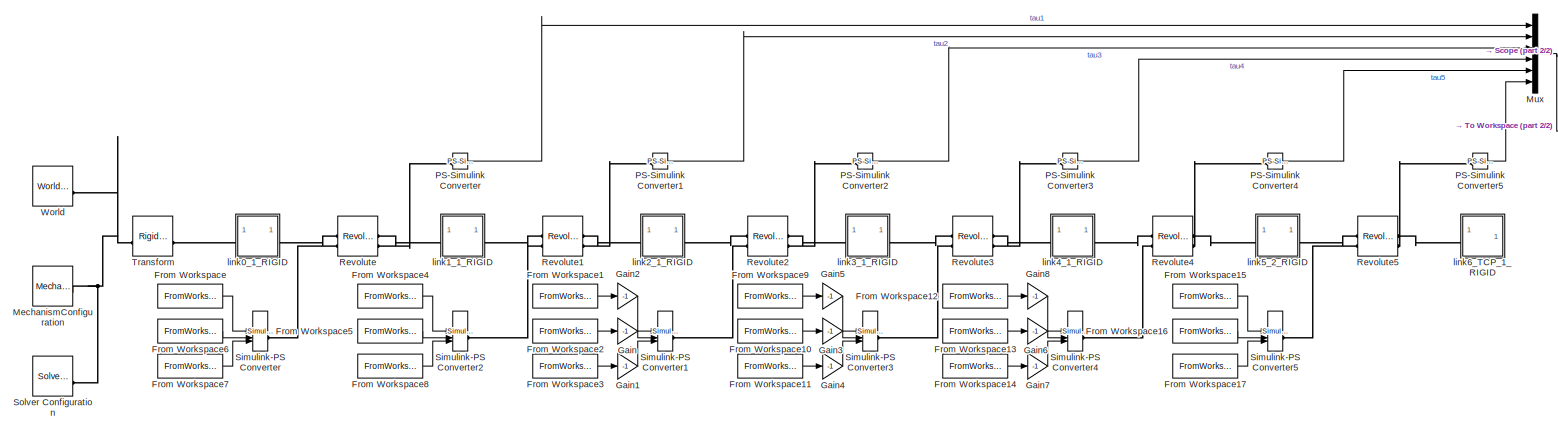
[diagram: root canvas - part 1/2, most of the canvas]
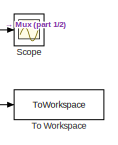
[diagram: root canvas - part 2/2, top right region]
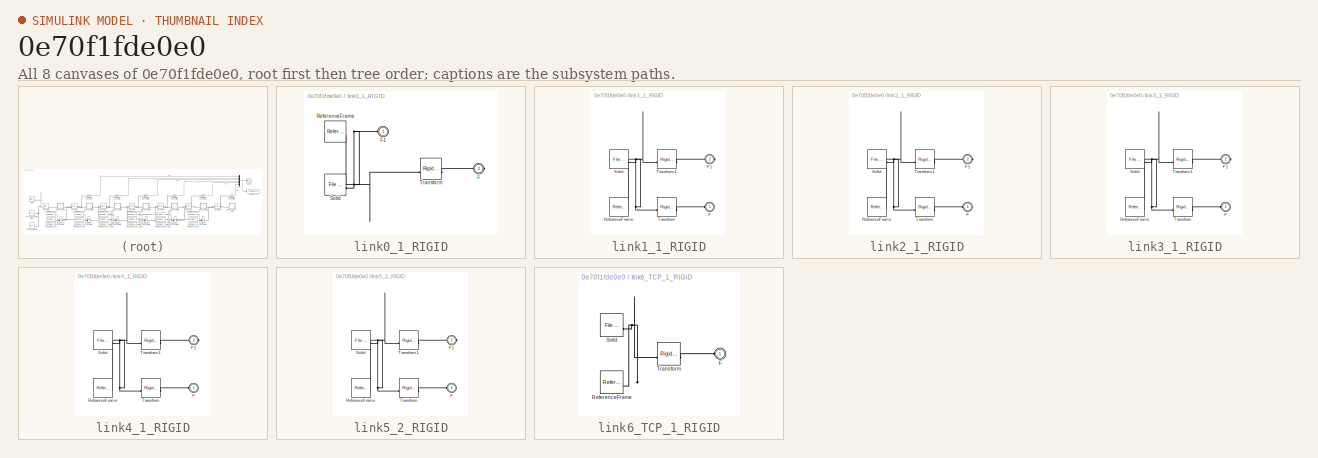
[diagram: thumbnail index - all 8 canvases of the model, root first then tree order]
MODEL slx_0e70f1fde0e0
KIND model
CONFIG AbsTol = auto
CONFIG EnableMultiTasking = off
CONFIG FixedStep = 1/100
CONFIG MaxStep = auto
CONFIG MinStep = auto
CONFIG RelTol = 1e-3
CONFIG SampleTimeConstraint = Unconstrained
CONFIG SolverName = FixedStepAuto
CONFIG StartTime = 0.0
CONFIG StopTime = 10.0
WORKSPACE source: external: MATLAB File  (data not in archive)
BLOCK [FromWorkspace] From Workspace
  VariableName = q1
BLOCK [FromWorkspace] From Workspace1
  VariableName = q3
BLOCK [FromWorkspace] From Workspace10
  VariableName = dq4
BLOCK [FromWorkspace] From Workspace11
  VariableName = ddq4
BLOCK [FromWorkspace] From Workspace12
  VariableName = q5
BLOCK [FromWorkspace] From Workspace13
  VariableName = dq5
BLOCK [FromWorkspace] From Workspace14
  VariableName = ddq5
BLOCK [FromWorkspace] From Workspace15
  VariableName = q6
BLOCK [FromWorkspace] From Workspace16
  VariableName = dq6
BLOCK [FromWorkspace] From Workspace17
  VariableName = ddq6
BLOCK [FromWorkspace] From Workspace2
  VariableName = dq3
BLOCK [FromWorkspace] From Workspace3
  VariableName = ddq3
BLOCK [FromWorkspace] From Workspace4
  VariableName = q2
BLOCK [FromWorkspace] From Workspace5
  VariableName = dq2
BLOCK [FromWorkspace] From Workspace6
  VariableName = dq1
BLOCK [FromWorkspace] From Workspace7
  VariableName = ddq1
BLOCK [FromWorkspace] From Workspace8
  VariableName = ddq2
BLOCK [FromWorkspace] From Workspace9
  VariableName = q4
BLOCK [Gain] Gain
  Gain = -1
BLOCK [Gain] Gain1
  Gain = -1
BLOCK [Gain] Gain2
  Gain = -1
BLOCK [Gain] Gain3
  Gain = -1
BLOCK [Gain] Gain4
  Gain = -1
BLOCK [Gain] Gain5
  Gain = -1
BLOCK [Gain] Gain6
  Gain = -1
BLOCK [Gain] Gain7
  Gain = -1
BLOCK [Gain] Gain8
  Gain = -1
BLOCK [Reference] MechanismConfiguration  REF=sm_lib/Utilities/Mechanism
Configuration
  SourceBlock = sm_lib/Utilities/Mechanism\nConfiguration
  SourceType = Mechanism\nConfiguration
BLOCK [Mux] Mux
  DisplayOption = bar
  Inputs = 6
BLOCK [Reference] PS-Simulink Converter  REF=nesl_utility/PS-Simulink
Converter
  SourceBlock = nesl_utility/PS-Simulink\nConverter
  SourceType = PS-Simulink\nConverter
BLOCK [Reference] PS-Simulink Converter1  REF=nesl_utility/PS-Simulink
Converter
  SourceBlock = nesl_utility/PS-Simulink\nConverter
  SourceType = PS-Simulink\nConverter
BLOCK [Reference] PS-Simulink Converter2  REF=nesl_utility/PS-Simulink
Converter
  SourceBlock = nesl_utility/PS-Simulink\nConverter
  SourceType = PS-Simulink\nConverter
BLOCK [Reference] PS-Simulink Converter3  REF=nesl_utility/PS-Simulink
Converter
  SourceBlock = nesl_utility/PS-Simulink\nConverter
  SourceType = PS-Simulink\nConverter
BLOCK [Reference] PS-Simulink Converter4  REF=nesl_utility/PS-Simulink
Converter
  SourceBlock = nesl_utility/PS-Simulink\nConverter
  SourceType = PS-Simulink\nConverter
BLOCK [Reference] PS-Simulink Converter5  REF=nesl_utility/PS-Simulink
Converter
  SourceBlock = nesl_utility/PS-Simulink\nConverter
  SourceType = PS-Simulink\nConverter
BLOCK [Reference] Revolute  REF=sm_lib/Joints/Revolute Joint
  SourceBlock = sm_lib/Joints/Revolute Joint
  SourceType = Revolute Joint
BLOCK [Reference] Revolute1  REF=sm_lib/Joints/Revolute Joint
  SourceBlock = sm_lib/Joints/Revolute Joint
  SourceType = Revolute Joint
BLOCK [Reference] Revolute2  REF=sm_lib/Joints/Revolute Joint
  SourceBlock = sm_lib/Joints/Revolute Joint
  SourceType = Revolute Joint
BLOCK [Reference] Revolute3  REF=sm_lib/Joints/Revolute Joint
  SourceBlock = sm_lib/Joints/Revolute Joint
  SourceType = Revolute Joint
BLOCK [Reference] Revolute4  REF=sm_lib/Joints/Revolute Joint
  SourceBlock = sm_lib/Joints/Revolute Joint
  SourceType = Revolute Joint
BLOCK [Reference] Revolute5  REF=sm_lib/Joints/Revolute Joint
  SourceBlock = sm_lib/Joints/Revolute Joint
  SourceType = Revolute Joint
BLOCK [Scope] Scope
  Floating = off
  NumInputPorts = 1
  ScopeSpecificationString = Simulink.scopes.TimeScopeBlockCfg('CurrentConfiguration', extmgr.ConfigurationSet(extmgr.Configuration('Core','General UI',true),extmgr.Configuration('Core','Source UI',true),extmgr.Configuration('Sources','WiredSimulink',true),extmgr.Configuration('Visuals','Time Domain',true),extmgr.Configuration('Tools','Plot Navigation',true),extmgr.Configuration('Tools','Measurements',true)),'Version','2024b'...<+1ch>
BLOCK [Reference] Simulink-PS Converter  REF=nesl_utility/Simulink-PS
Converter
  SourceBlock = nesl_utility/Simulink-PS\nConverter
  SourceType = Simulink-PS\nConverter
BLOCK [Reference] Simulink-PS Converter1  REF=nesl_utility/Simulink-PS
Converter
  SourceBlock = nesl_utility/Simulink-PS\nConverter
  SourceType = Simulink-PS\nConverter
BLOCK [Reference] Simulink-PS Converter2  REF=nesl_utility/Simulink-PS
Converter
  SourceBlock = nesl_utility/Simulink-PS\nConverter
  SourceType = Simulink-PS\nConverter
BLOCK [Reference] Simulink-PS Converter3  REF=nesl_utility/Simulink-PS
Converter
  SourceBlock = nesl_utility/Simulink-PS\nConverter
  SourceType = Simulink-PS\nConverter
BLOCK [Reference] Simulink-PS Converter4  REF=nesl_utility/Simulink-PS
Converter
  SourceBlock = nesl_utility/Simulink-PS\nConverter
  SourceType = Simulink-PS\nConverter
BLOCK [Reference] Simulink-PS Converter5  REF=nesl_utility/Simulink-PS
Converter
  SourceBlock = nesl_utility/Simulink-PS\nConverter
  SourceType = Simulink-PS\nConverter
BLOCK [Reference] Solver Configuration  REF=nesl_utility/Solver
Configuration
  SourceBlock = nesl_utility/Solver\nConfiguration
  SourceType = Solver\nConfiguration
BLOCK [ToWorkspace] To Workspace
  FixptAsFi = on
  MaxDataPoints = inf
  SampleTime = -1
  Save2DSignal = 2-D array (concatenate along first dimension)
  VariableName = simout
BLOCK [Reference] Transform  REF=sm_lib/Frames and
Transforms/Rigid
Transform
  SourceBlock = sm_lib/Frames and\nTransforms/Rigid\nTransform
  SourceType = Rigid\nTransform
BLOCK [Reference] World  REF=sm_lib/Frames and
Transforms/World Frame
  SourceBlock = sm_lib/Frames and\nTransforms/World Frame
  SourceType = World Frame
BLOCK [SubSystem] link0_1_RIGID
BLOCK [PMIOPort] link0_1_RIGID/F
  Port = 2
  Side = Right
BLOCK [PMIOPort] link0_1_RIGID/F1
  Side = Left
BLOCK [Reference] link0_1_RIGID/ReferenceFrame  REF=sm_lib/Frames and
Transforms/Reference
Frame
  SourceBlock = sm_lib/Frames and\nTransforms/Reference\nFrame
  SourceType = Reference\nFrame
BLOCK [Reference] link0_1_RIGID/Solid  REF=sm_lib/Body Elements/File Solid
  SourceBlock = sm_lib/Body Elements/File Solid
  SourceType = File Solid
BLOCK [Reference] link0_1_RIGID/Transform  REF=sm_lib/Frames and
Transforms/Rigid
Transform
  SourceBlock = sm_lib/Frames and\nTransforms/Rigid\nTransform
  SourceType = Rigid\nTransform
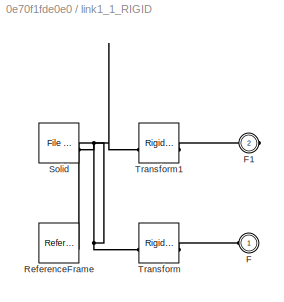
BLOCK [SubSystem] link1_1_RIGID
BLOCK [PMIOPort] link1_1_RIGID/F
  Side = Left
BLOCK [PMIOPort] link1_1_RIGID/F1
  Port = 2
  Side = Right
BLOCK [Reference] link1_1_RIGID/ReferenceFrame  REF=sm_lib/Frames and
Transforms/Reference
Frame
  SourceBlock = sm_lib/Frames and\nTransforms/Reference\nFrame
  SourceType = Reference\nFrame
BLOCK [Reference] link1_1_RIGID/Solid  REF=sm_lib/Body Elements/File Solid
  SourceBlock = sm_lib/Body Elements/File Solid
  SourceType = File Solid
BLOCK [Reference] link1_1_RIGID/Transform  REF=sm_lib/Frames and
Transforms/Rigid
Transform
  SourceBlock = sm_lib/Frames and\nTransforms/Rigid\nTransform
  SourceType = Rigid\nTransform
BLOCK [Reference] link1_1_RIGID/Transform1  REF=sm_lib/Frames and
Transforms/Rigid
Transform
  SourceBlock = sm_lib/Frames and\nTransforms/Rigid\nTransform
  SourceType = Rigid\nTransform
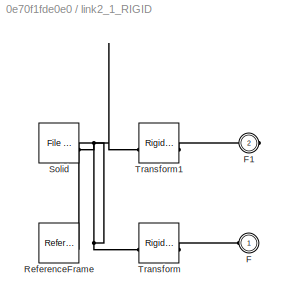
BLOCK [SubSystem] link2_1_RIGID
BLOCK [PMIOPort] link2_1_RIGID/F
  Side = Left
BLOCK [PMIOPort] link2_1_RIGID/F1
  Port = 2
  Side = Right
BLOCK [Reference] link2_1_RIGID/ReferenceFrame  REF=sm_lib/Frames and
Transforms/Reference
Frame
  SourceBlock = sm_lib/Frames and\nTransforms/Reference\nFrame
  SourceType = Reference\nFrame
BLOCK [Reference] link2_1_RIGID/Solid  REF=sm_lib/Body Elements/File Solid
  SourceBlock = sm_lib/Body Elements/File Solid
  SourceType = File Solid
BLOCK [Reference] link2_1_RIGID/Transform  REF=sm_lib/Frames and
Transforms/Rigid
Transform
  SourceBlock = sm_lib/Frames and\nTransforms/Rigid\nTransform
  SourceType = Rigid\nTransform
BLOCK [Reference] link2_1_RIGID/Transform1  REF=sm_lib/Frames and
Transforms/Rigid
Transform
  SourceBlock = sm_lib/Frames and\nTransforms/Rigid\nTransform
  SourceType = Rigid\nTransform
BLOCK [SubSystem] link3_1_RIGID
BLOCK [PMIOPort] link3_1_RIGID/F
  Side = Left
BLOCK [PMIOPort] link3_1_RIGID/F1
  Port = 2
  Side = Right
BLOCK [Reference] link3_1_RIGID/ReferenceFrame  REF=sm_lib/Frames and
Transforms/Reference
Frame
  SourceBlock = sm_lib/Frames and\nTransforms/Reference\nFrame
  SourceType = Reference\nFrame
BLOCK [Reference] link3_1_RIGID/Solid  REF=sm_lib/Body Elements/File Solid
  SourceBlock = sm_lib/Body Elements/File Solid
  SourceType = File Solid
BLOCK [Reference] link3_1_RIGID/Transform  REF=sm_lib/Frames and
Transforms/Rigid
Transform
  SourceBlock = sm_lib/Frames and\nTransforms/Rigid\nTransform
  SourceType = Rigid\nTransform
BLOCK [Reference] link3_1_RIGID/Transform1  REF=sm_lib/Frames and
Transforms/Rigid
Transform
  SourceBlock = sm_lib/Frames and\nTransforms/Rigid\nTransform
  SourceType = Rigid\nTransform
BLOCK [SubSystem] link4_1_RIGID
BLOCK [PMIOPort] link4_1_RIGID/F
  Side = Left
BLOCK [PMIOPort] link4_1_RIGID/F1
  Port = 2
  Side = Right
BLOCK [Reference] link4_1_RIGID/ReferenceFrame  REF=sm_lib/Frames and
Transforms/Reference
Frame
  SourceBlock = sm_lib/Frames and\nTransforms/Reference\nFrame
  SourceType = Reference\nFrame
BLOCK [Reference] link4_1_RIGID/Solid  REF=sm_lib/Body Elements/File Solid
  SourceBlock = sm_lib/Body Elements/File Solid
  SourceType = File Solid
BLOCK [Reference] link4_1_RIGID/Transform  REF=sm_lib/Frames and
Transforms/Rigid
Transform
  SourceBlock = sm_lib/Frames and\nTransforms/Rigid\nTransform
  SourceType = Rigid\nTransform
BLOCK [Reference] link4_1_RIGID/Transform1  REF=sm_lib/Frames and
Transforms/Rigid
Transform
  SourceBlock = sm_lib/Frames and\nTransforms/Rigid\nTransform
  SourceType = Rigid\nTransform
BLOCK [SubSystem] link5_2_RIGID
BLOCK [PMIOPort] link5_2_RIGID/F
  Side = Left
BLOCK [PMIOPort] link5_2_RIGID/F1
  Port = 2
  Side = Right
BLOCK [Reference] link5_2_RIGID/ReferenceFrame  REF=sm_lib/Frames and
Transforms/Reference
Frame
  SourceBlock = sm_lib/Frames and\nTransforms/Reference\nFrame
  SourceType = Reference\nFrame
BLOCK [Reference] link5_2_RIGID/Solid  REF=sm_lib/Body Elements/File Solid
  SourceBlock = sm_lib/Body Elements/File Solid
  SourceType = File Solid
BLOCK [Reference] link5_2_RIGID/Transform  REF=sm_lib/Frames and
Transforms/Rigid
Transform
  SourceBlock = sm_lib/Frames and\nTransforms/Rigid\nTransform
  SourceType = Rigid\nTransform
BLOCK [Reference] link5_2_RIGID/Transform1  REF=sm_lib/Frames and
Transforms/Rigid
Transform
  SourceBlock = sm_lib/Frames and\nTransforms/Rigid\nTransform
  SourceType = Rigid\nTransform
BLOCK [SubSystem] link6_TCP_1_RIGID
BLOCK [PMIOPort] link6_TCP_1_RIGID/F
  Side = Left
BLOCK [Reference] link6_TCP_1_RIGID/ReferenceFrame  REF=sm_lib/Frames and
Transforms/Reference
Frame
  SourceBlock = sm_lib/Frames and\nTransforms/Reference\nFrame
  SourceType = Reference\nFrame
BLOCK [Reference] link6_TCP_1_RIGID/Solid  REF=sm_lib/Body Elements/File Solid
  SourceBlock = sm_lib/Body Elements/File Solid
  SourceType = File Solid
BLOCK [Reference] link6_TCP_1_RIGID/Transform  REF=sm_lib/Frames and
Transforms/Rigid
Transform
  SourceBlock = sm_lib/Frames and\nTransforms/Rigid\nTransform
  SourceType = Rigid\nTransform
LINE From Workspace10:1 -> Gain3:1
LINE From Workspace11:1 -> Gain4:1
LINE From Workspace12:1 -> Gain8:1
LINE From Workspace13:1 -> Gain6:1
LINE From Workspace14:1 -> Gain7:1
LINE From Workspace15:1 -> Simulink-PS Converter5:1
LINE From Workspace16:1 -> Simulink-PS Converter5:2
LINE From Workspace17:1 -> Simulink-PS Converter5:3
LINE From Workspace1:1 -> Gain2:1
LINE From Workspace2:1 -> Gain:1
LINE From Workspace3:1 -> Gain1:1
LINE From Workspace4:1 -> Simulink-PS Converter2:1
LINE From Workspace5:1 -> Simulink-PS Converter2:2
LINE From Workspace6:1 -> Simulink-PS Converter:2
LINE From Workspace7:1 -> Simulink-PS Converter:3
LINE From Workspace8:1 -> Simulink-PS Converter2:3
LINE From Workspace9:1 -> Gain5:1
LINE From Workspace:1 -> Simulink-PS Converter:1
LINE Gain1:1 -> Simulink-PS Converter1:3
LINE Gain2:1 -> Simulink-PS Converter1:1
LINE Gain3:1 -> Simulink-PS Converter3:2
LINE Gain4:1 -> Simulink-PS Converter3:3
LINE Gain5:1 -> Simulink-PS Converter3:1
LINE Gain6:1 -> Simulink-PS Converter4:2
LINE Gain7:1 -> Simulink-PS Converter4:3
LINE Gain8:1 -> Simulink-PS Converter4:1
LINE Gain:1 -> Simulink-PS Converter1:2
NET Mux:1 -> Scope:1, To Workspace:1
LINE PS-Simulink Converter1:1 -> Mux:2
LINE PS-Simulink Converter2:1 -> Mux:3
LINE PS-Simulink Converter3:1 -> Mux:4
LINE PS-Simulink Converter4:1 -> Mux:5
LINE PS-Simulink Converter5:1 -> Mux:6
LINE PS-Simulink Converter:1 -> Mux:1
PNET net1: MechanismConfiguration:RConn1 -- Solver Configuration:RConn1 -- Transform:LConn1 -- World:RConn1
PLINE PS-Simulink Converter1:LConn1 -- Revolute1:RConn2
PLINE PS-Simulink Converter2:LConn1 -- Revolute2:RConn2
PLINE PS-Simulink Converter3:LConn1 -- Revolute3:RConn2
PLINE PS-Simulink Converter4:LConn1 -- Revolute4:RConn2
PLINE PS-Simulink Converter5:LConn1 -- Revolute5:RConn2
PLINE PS-Simulink Converter:LConn1 -- Revolute:RConn2
PLINE Revolute1:LConn1 -- link1_1_RIGID:RConn1
PLINE Revolute1:LConn2 -- Simulink-PS Converter2:RConn1
PLINE Revolute1:RConn1 -- link2_1_RIGID:LConn1
PLINE Revolute2:LConn1 -- link2_1_RIGID:RConn1
PLINE Revolute2:LConn2 -- Simulink-PS Converter1:RConn1
PLINE Revolute2:RConn1 -- link3_1_RIGID:LConn1
PLINE Revolute3:LConn1 -- link3_1_RIGID:RConn1
PLINE Revolute3:LConn2 -- Simulink-PS Converter3:RConn1
PLINE Revolute3:RConn1 -- link4_1_RIGID:LConn1
PLINE Revolute4:LConn1 -- link4_1_RIGID:RConn1
PLINE Revolute4:LConn2 -- Simulink-PS Converter4:RConn1
PLINE Revolute4:RConn1 -- link5_2_RIGID:LConn1
PLINE Revolute5:LConn1 -- link5_2_RIGID:RConn1
PLINE Revolute5:LConn2 -- Simulink-PS Converter5:RConn1
PLINE Revolute5:RConn1 -- link6_TCP_1_RIGID:LConn1
PLINE Revolute:LConn1 -- link0_1_RIGID:RConn1
PLINE Revolute:LConn2 -- Simulink-PS Converter:RConn1
PLINE Revolute:RConn1 -- link1_1_RIGID:LConn1
PLINE Transform:RConn1 -- link0_1_RIGID:LConn1
PNET net2: link0_1_RIGID/F1:RConn1 -- link0_1_RIGID/ReferenceFrame:RConn1 -- link0_1_RIGID/Solid:RConn1 -- link0_1_RIGID/Transform:LConn1
PLINE link0_1_RIGID/F:RConn1 -- link0_1_RIGID/Transform:RConn1
PLINE link1_1_RIGID/F1:RConn1 -- link1_1_RIGID/Transform1:RConn1
PLINE link1_1_RIGID/F:RConn1 -- link1_1_RIGID/Transform:RConn1
PNET net3: link1_1_RIGID/ReferenceFrame:RConn1 -- link1_1_RIGID/Solid:RConn1 -- link1_1_RIGID/Transform1:LConn1 -- link1_1_RIGID/Transform:LConn1
PLINE link2_1_RIGID/F1:RConn1 -- link2_1_RIGID/Transform1:RConn1
PLINE link2_1_RIGID/F:RConn1 -- link2_1_RIGID/Transform:RConn1
PNET net4: link2_1_RIGID/ReferenceFrame:RConn1 -- link2_1_RIGID/Solid:RConn1 -- link2_1_RIGID/Transform1:LConn1 -- link2_1_RIGID/Transform:LConn1
PLINE link3_1_RIGID/F1:RConn1 -- link3_1_RIGID/Transform1:RConn1
PLINE link3_1_RIGID/F:RConn1 -- link3_1_RIGID/Transform:RConn1
PNET net5: link3_1_RIGID/ReferenceFrame:RConn1 -- link3_1_RIGID/Solid:RConn1 -- link3_1_RIGID/Transform1:LConn1 -- link3_1_RIGID/Transform:LConn1
PLINE link4_1_RIGID/F1:RConn1 -- link4_1_RIGID/Transform1:RConn1
PLINE link4_1_RIGID/F:RConn1 -- link4_1_RIGID/Transform:RConn1
PNET net6: link4_1_RIGID/ReferenceFrame:RConn1 -- link4_1_RIGID/Solid:RConn1 -- link4_1_RIGID/Transform1:LConn1 -- link4_1_RIGID/Transform:LConn1
PLINE link5_2_RIGID/F1:RConn1 -- link5_2_RIGID/Transform1:RConn1
PLINE link5_2_RIGID/F:RConn1 -- link5_2_RIGID/Transform:RConn1
PNET net7: link5_2_RIGID/ReferenceFrame:RConn1 -- link5_2_RIGID/Solid:RConn1 -- link5_2_RIGID/Transform1:LConn1 -- link5_2_RIGID/Transform:LConn1
PLINE link6_TCP_1_RIGID/F:RConn1 -- link6_TCP_1_RIGID/Transform:RConn1
PNET net8: link6_TCP_1_RIGID/ReferenceFrame:RConn1 -- link6_TCP_1_RIGID/Solid:RConn1 -- link6_TCP_1_RIGID/Transform:LConn1
note: NET lines group one-source signal fan-out (src -> all destinations, sorted); 1:1 wires keep LINE; PNET lines group multi-terminal physical nets as a canonical sorted terminal list (undirected conserving connections); 2-terminal nets keep the pairwise PLINE form
